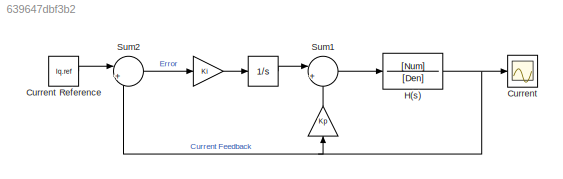
MODEL slx_639647dbf3b2
KIND model
CONFIG AbsTol = auto
CONFIG FixedStep = auto
CONFIG MaxStep = auto
CONFIG MinStep = auto
CONFIG RelTol = 1e-3
CONFIG SampleTimeConstraint = Unconstrained
CONFIG Solver = VariableStepAuto
CONFIG SolverMode = Auto
CONFIG SolverName = VariableStepAuto
CONFIG StartTime = 0.0
CONFIG StopTime = 10.0
BLOCK [Gain]  
  Gain = Kp
  OutDataTypeStr = Inherit: Inherit via internal rule
  ParamDataTypeStr = Inherit: Inherit via internal rule
  SaturateOnIntegerOverflow = off
BLOCK [Scope] Current
  Ports = [1]
  ScopeSpecificationString = C++SS(StrPVP('SaveName','ScopeData'))
BLOCK [Constant] Current Reference 
  Value = Iq.ref
BLOCK [TransferFcn] H(s)
  Denominator = [Den]
  Numerator = [Num]
BLOCK [Sum] Sum1
  IconShape = round
  InputSameDT = off
  Inputs = |+-
  OutDataTypeStr = Inherit: Inherit via internal rule
  Ports = [2, 1]
  SaturateOnIntegerOverflow = off
BLOCK [Sum] Sum2
  IconShape = round
  InputSameDT = off
  Inputs = |+-
  OutDataTypeStr = Inherit: Inherit via internal rule
  Ports = [2, 1]
  SaturateOnIntegerOverflow = off
NET  :1 ->  :1, Sum1:1, Sum1:2
LINE Current Reference :1 -> Sum2:1
NET H(s):1 ->  :1, Current:1, Sum2:2
LINE Sum1:1 -> H(s):1
LINE Sum2:1 ->  :1
note: NET lines group one-source signal fan-out (src -> all destinations, sorted); 1:1 wires keep LINE
